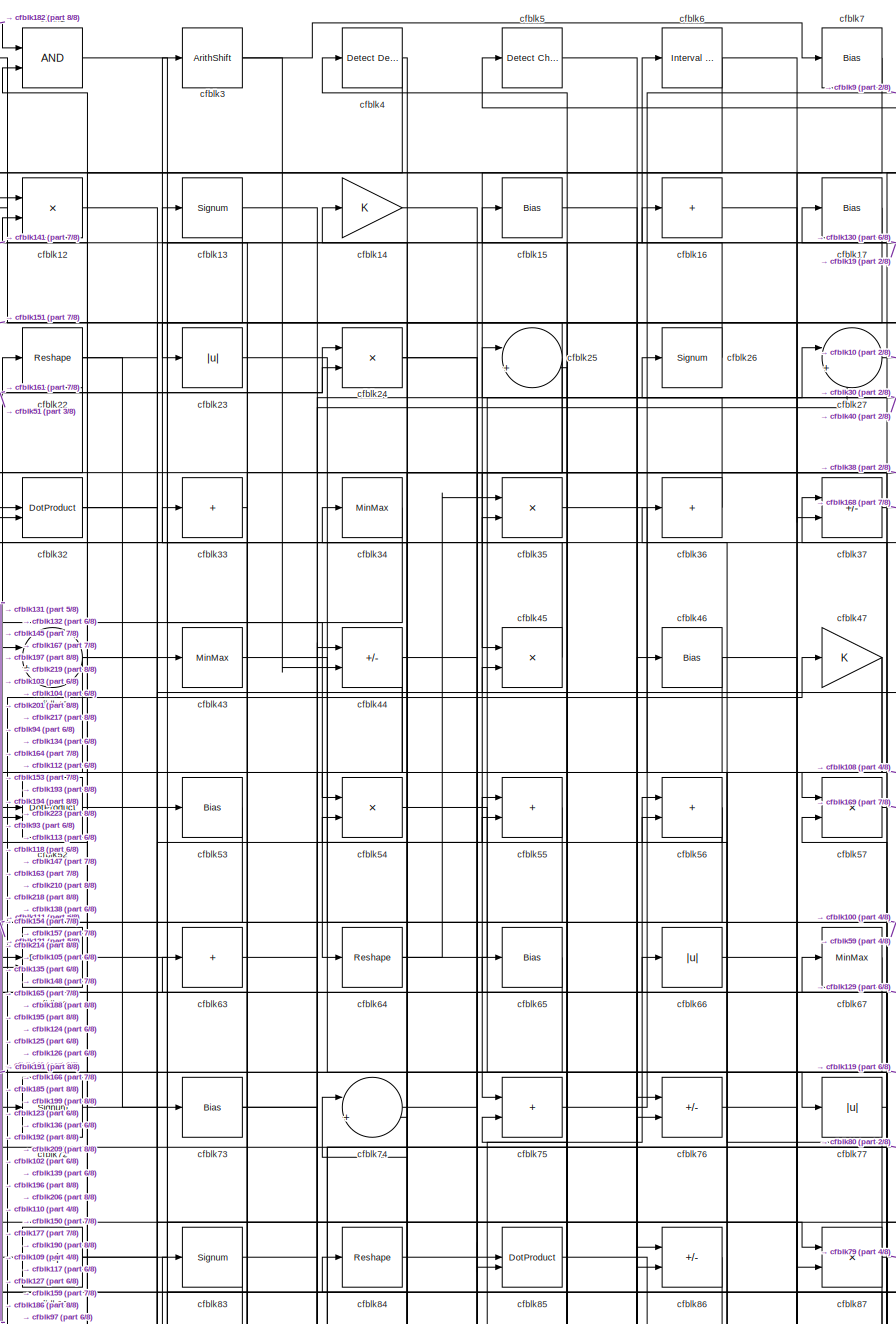
[diagram: root canvas - part 1/8, top center region]
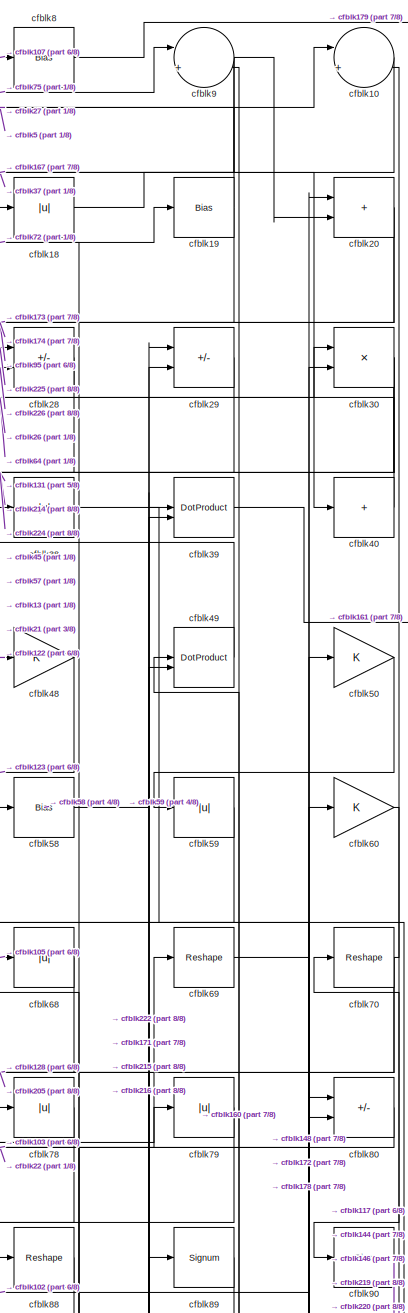
[diagram: root canvas - part 2/8, top right region]
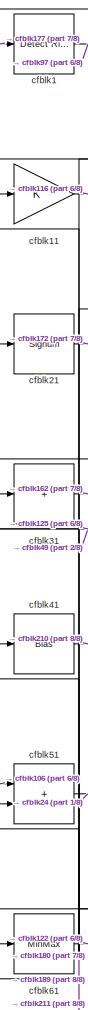
[diagram: root canvas - part 3/8, top left region]
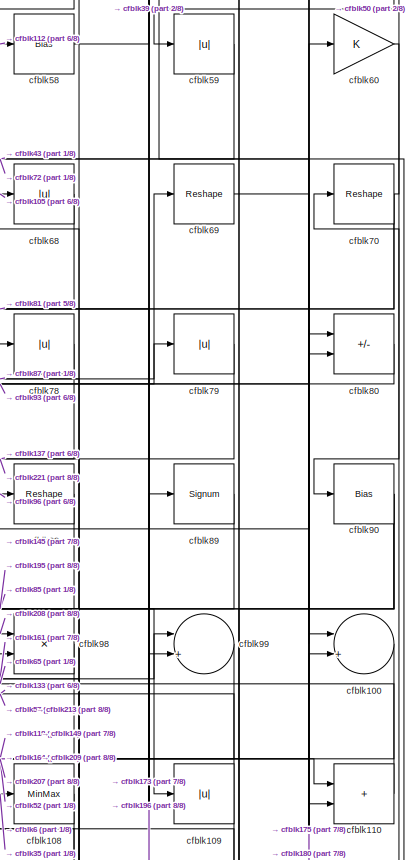
[diagram: root canvas - part 4/8, middle right region]
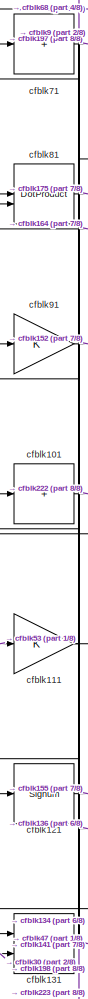
[diagram: root canvas - part 5/8, middle left region]
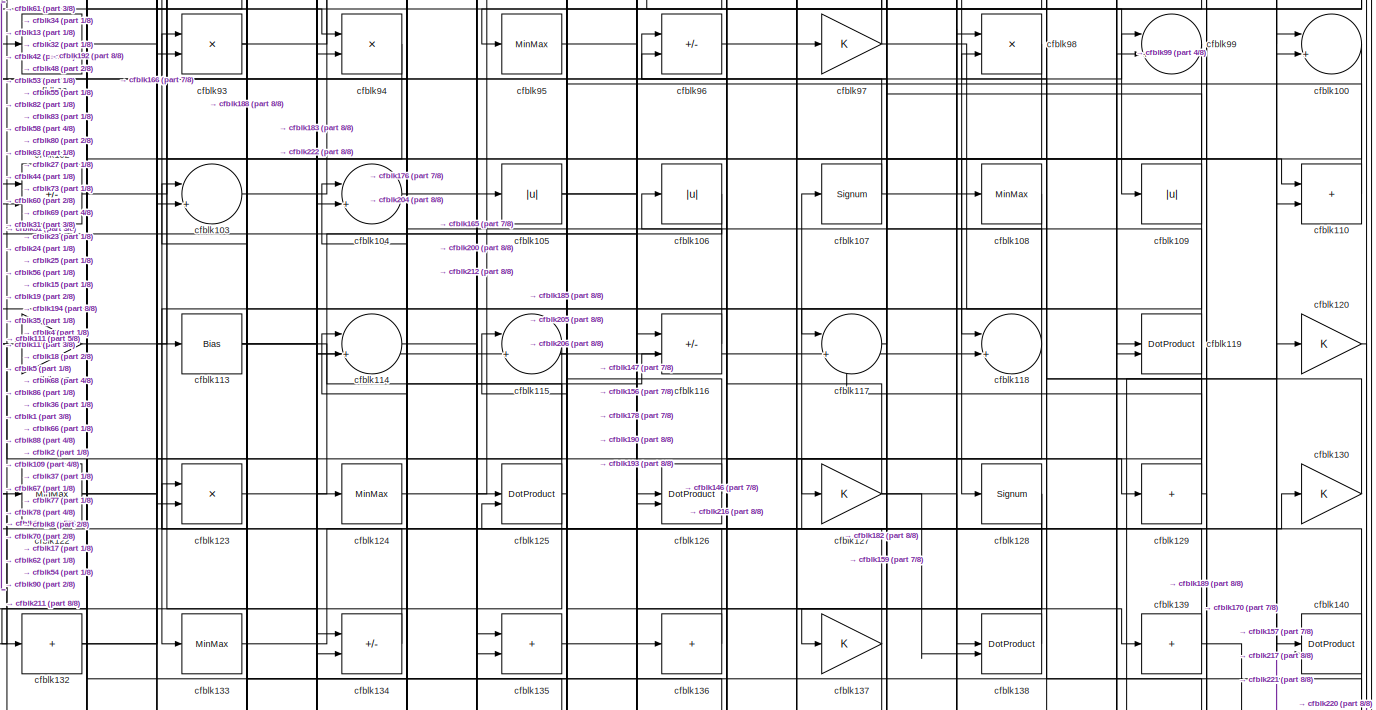
[diagram: root canvas - part 6/8, full width, middle band]
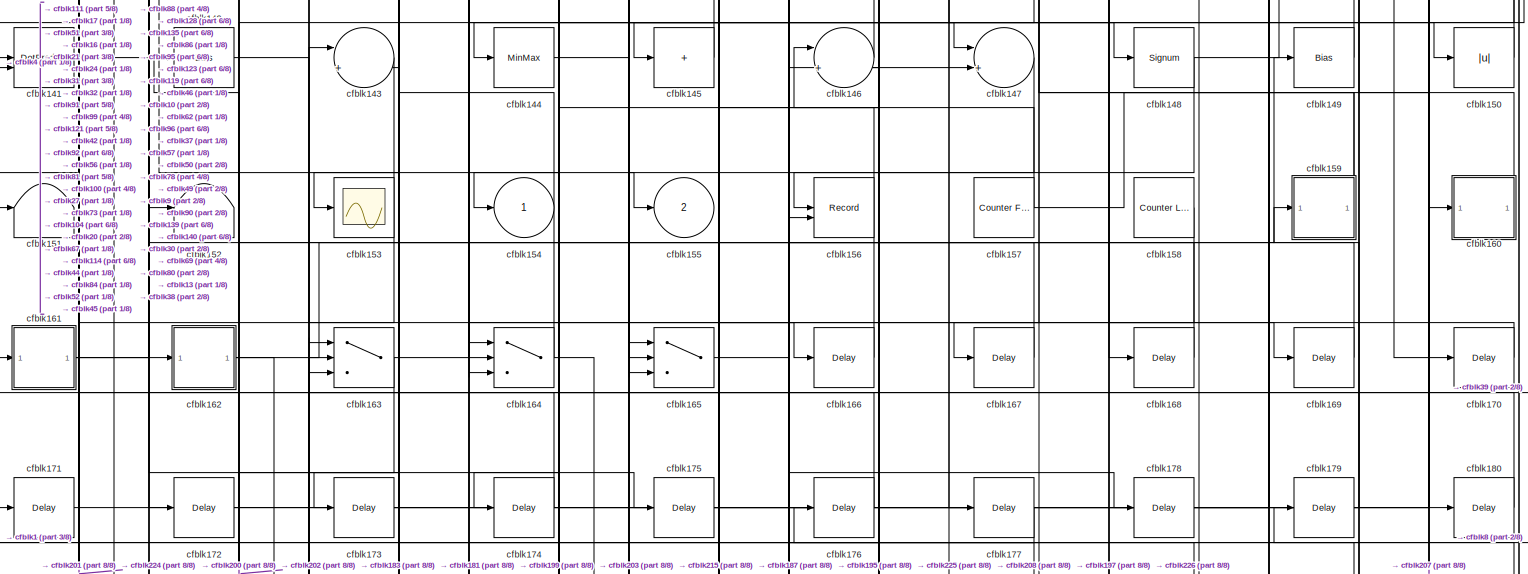
[diagram: root canvas - part 7/8, full width, bottom band]
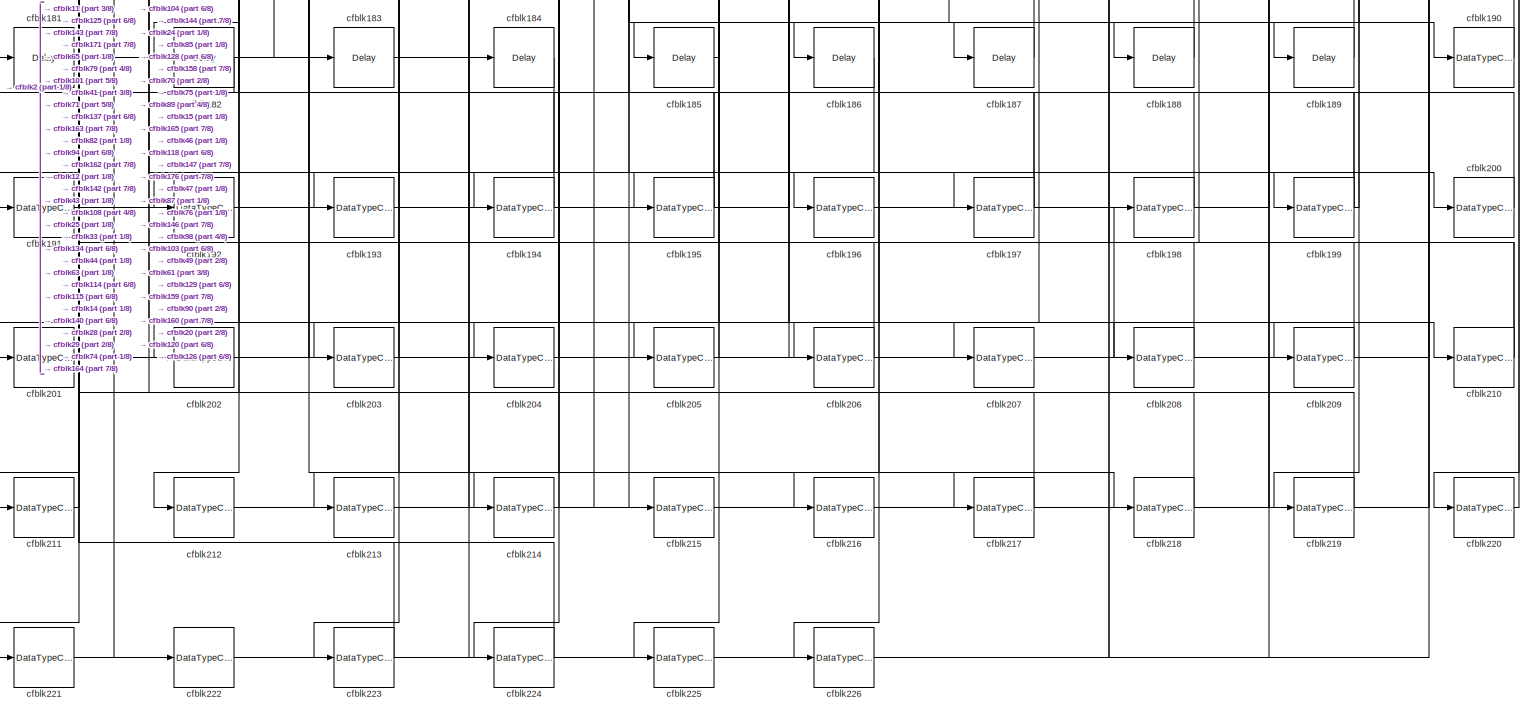
[diagram: root canvas - part 8/8, full width, bottom band]
MODEL slx_57c2b74b3828
KIND model
CONFIG AbsTol = auto
CONFIG EnableMultiTasking = off
CONFIG FixedStep = auto
CONFIG MaxStep = auto
CONFIG MinStep = auto
CONFIG RelTol = 1e-3
CONFIG SampleTimeConstraint = Unconstrained
CONFIG SolverName = VariableStepAuto
CONFIG StartTime = 0.0
CONFIG StopTime = 10.0
BLOCK [Reference] cfblk1  REF=hdlsllib/Logic and Bit
Operations/Detect Rise
Nonnegative
  SourceBlock = hdlsllib/Logic and Bit\nOperations/Detect Rise\nNonnegative
  SourceType = Detect Rise Nonnegative
BLOCK [Sum] cfblk10
  Inputs = |++
BLOCK [Sum] cfblk100
  Inputs = |++
BLOCK [Sum] cfblk101
  IconShape = rectangular
  Inputs = +
BLOCK [Sum] cfblk102
  IconShape = rectangular
  Inputs = +-
BLOCK [Sum] cfblk103
  Inputs = |++
BLOCK [Sum] cfblk104
  Inputs = |++
BLOCK [Abs] cfblk105
  SaturateOnIntegerOverflow = off
BLOCK [Abs] cfblk106
  SaturateOnIntegerOverflow = off
BLOCK [Signum] cfblk107
BLOCK [MinMax] cfblk108
BLOCK [Abs] cfblk109
  SaturateOnIntegerOverflow = off
BLOCK [Gain] cfblk11
BLOCK [Sum] cfblk110
  IconShape = rectangular
BLOCK [Gain] cfblk111
BLOCK [Gain] cfblk112
BLOCK [Bias] cfblk113
  Bias = 0.0
  SaturateOnIntegerOverflow = off
BLOCK [Sum] cfblk114
  Inputs = |++
BLOCK [Sum] cfblk115
  Inputs = |++
BLOCK [Sum] cfblk116
  IconShape = rectangular
  Inputs = +-
BLOCK [Sum] cfblk117
  Inputs = |++
BLOCK [Sum] cfblk118
  Inputs = |++
BLOCK [DotProduct] cfblk119
  OutDataTypeStr = Inherit: Inherit via internal rule
BLOCK [Product] cfblk12
  Inputs = */
  RndMeth = Zero
  SaturateOnIntegerOverflow = on
BLOCK [Gain] cfblk120
BLOCK [Signum] cfblk121
BLOCK [MinMax] cfblk122
BLOCK [Product] cfblk123
  Inputs = */
  RndMeth = Zero
  SaturateOnIntegerOverflow = on
BLOCK [MinMax] cfblk124
BLOCK [DotProduct] cfblk125
  OutDataTypeStr = Inherit: Inherit via internal rule
BLOCK [DotProduct] cfblk126
  OutDataTypeStr = Inherit: Inherit via internal rule
BLOCK [Gain] cfblk127
BLOCK [Signum] cfblk128
BLOCK [Sum] cfblk129
  IconShape = rectangular
  Inputs = +
BLOCK [Signum] cfblk13
BLOCK [Gain] cfblk130
BLOCK [Sum] cfblk131
  IconShape = rectangular
  Inputs = +-
BLOCK [Sum] cfblk132
  IconShape = rectangular
  Inputs = +
BLOCK [MinMax] cfblk133
BLOCK [Sum] cfblk134
  IconShape = rectangular
  Inputs = +-
BLOCK [Sum] cfblk135
  IconShape = rectangular
BLOCK [Sum] cfblk136
  IconShape = rectangular
  Inputs = +
BLOCK [Gain] cfblk137
BLOCK [DotProduct] cfblk138
  OutDataTypeStr = Inherit: Inherit via internal rule
BLOCK [Sum] cfblk139
  IconShape = rectangular
  Inputs = +
BLOCK [Gain] cfblk14
BLOCK [DotProduct] cfblk140
  OutDataTypeStr = Inherit: Inherit via internal rule
BLOCK [DotProduct] cfblk141
  OutDataTypeStr = Inherit: Inherit via internal rule
BLOCK [Bias] cfblk142
  Bias = 0.0
  SaturateOnIntegerOverflow = off
BLOCK [Sum] cfblk143
  Inputs = |++
BLOCK [MinMax] cfblk144
BLOCK [Sum] cfblk145
  IconShape = rectangular
  Inputs = +
BLOCK [Sum] cfblk146
  Inputs = |++
BLOCK [Sum] cfblk147
  Inputs = |++
BLOCK [Signum] cfblk148
BLOCK [Bias] cfblk149
  Bias = 0.0
  SaturateOnIntegerOverflow = off
BLOCK [Bias] cfblk15
  Bias = 0.0
  SaturateOnIntegerOverflow = off
BLOCK [Abs] cfblk150
  SaturateOnIntegerOverflow = off
BLOCK [Terminator] cfblk151
BLOCK [Terminator] cfblk152
BLOCK [Scope] cfblk153
  Floating = off
  NumInputPorts = 1
  ScopeSpecificationString = Simulink.scopes.TimeScopeBlockCfg('CurrentConfiguration', extmgr.ConfigurationSet(extmgr.Configuration('Core','General UI',true),extmgr.Configuration('Core','Source UI',true),extmgr.Configuration('Sources','WiredSimulink',true,'DataLoggingVariableName','ScopeData2','DataLoggingSaveFormat','Array','DataLoggingLimitDataPoints',true,'DataLoggingDecimation','1'),extmgr.Configuration('Visuals','Time Do...<+868ch>
BLOCK [Outport] cfblk154
  VectorParamsAs1DForOutWhenUnconnected = off
BLOCK [Outport] cfblk155
  Port = 2
  VectorParamsAs1DForOutWhenUnconnected = off
BLOCK [Record] cfblk156
  CompatibilityTag = XY
  FileSettingsInternal = {"entries":[{"content":{"excelSettings":{"content":{},"type":"Streamout.ExcelSettings"}},"type":"Streamout.FileSettingStorage","uuid":""}],"packageUris":["http:\/\/schema.mathworks.com\/mf0\/streamout_blocks\/R2020a"],"version":"1.0"}
  Layout = [1 1]
  SignalsInternal = {"entries":[{"content":{"signals":[{"content":{"blockPath":[],"dimensions":[1],"domain":"","lineColor":"#a2142f","plots":[1],"port":1,"signalID":2927,"signalName":"XY Graph:1"},"type":"RecordBlkView.Signal","uuid":""},{"content":{"blockPath":[],"dimensions":[1],"domain":"","lineColor":"#139fff","plots":[1],"port":2,"signalID":2930,"signalName":"XY Graph:2"},"type":"RecordBlkView.Signal","uuid":""}...<+146ch>
  VisualizationBindings = {"xyplotplugin":{"info":[{"series":[{"bindingParametersList":[{"parameter":"X-Axis","signalID":2927,"signalName":"XY Graph:1"},{"parameter":"Y-Axis","signalID":2930,"signalName":"XY Graph:2"}],"seriesID":20328}],"subplotID":1}]}}
  st = -1
BLOCK [Reference] cfblk157  REF=hdlsllib/Sources/Counter
Free-Running
  SourceBlock = hdlsllib/Sources/Counter\nFree-Running
  SourceType = Counter Free-Running
BLOCK [Reference] cfblk158  REF=hdlsllib/Sources/Counter
Limited
  SourceBlock = hdlsllib/Sources/Counter\nLimited
  SourceType = Counter Limited
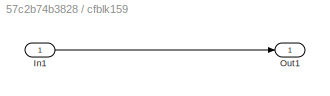
BLOCK [SubSystem] cfblk159
  LibrarySourceBlock = hdlsllib/Ports &\nSubsystems/Subsystem
BLOCK [Inport] cfblk159/In1
BLOCK [Outport] cfblk159/Out1
BLOCK [Sum] cfblk16
  IconShape = rectangular
  Inputs = +
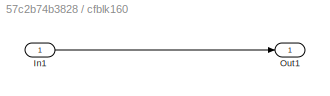
BLOCK [SubSystem] cfblk160
  LibrarySourceBlock = hdlsllib/Ports &\nSubsystems/Subsystem
BLOCK [Inport] cfblk160/In1
BLOCK [Outport] cfblk160/Out1
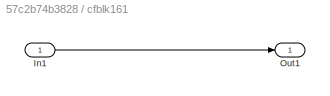
BLOCK [SubSystem] cfblk161
  LibrarySourceBlock = hdlsllib/Ports &\nSubsystems/Subsystem
BLOCK [Inport] cfblk161/In1
BLOCK [Outport] cfblk161/Out1
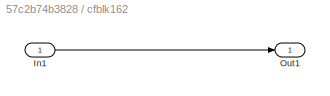
BLOCK [SubSystem] cfblk162
  LibrarySourceBlock = hdlsllib/Ports &\nSubsystems/Subsystem
BLOCK [Inport] cfblk162/In1
BLOCK [Outport] cfblk162/Out1
BLOCK [Switch] cfblk163
  InputSameDT = off
  SaturateOnIntegerOverflow = off
BLOCK [Switch] cfblk164
  InputSameDT = off
  SaturateOnIntegerOverflow = off
BLOCK [Switch] cfblk165
  InputSameDT = off
  SaturateOnIntegerOverflow = off
BLOCK [Delay] cfblk166
  InputPortMap = u0
  SampleTime = 1
BLOCK [Delay] cfblk167
  InputPortMap = u0
  SampleTime = 1
BLOCK [Delay] cfblk168
  InputPortMap = u0
  SampleTime = 1
BLOCK [Delay] cfblk169
  InputPortMap = u0
  SampleTime = 1
BLOCK [Bias] cfblk17
  Bias = 0.0
  SaturateOnIntegerOverflow = off
BLOCK [Delay] cfblk170
  InputPortMap = u0
  SampleTime = 1
BLOCK [Delay] cfblk171
  InputPortMap = u0
  SampleTime = 1
BLOCK [Delay] cfblk172
  InputPortMap = u0
  SampleTime = 1
BLOCK [Delay] cfblk173
  InputPortMap = u0
  SampleTime = 1
BLOCK [Delay] cfblk174
  InputPortMap = u0
  SampleTime = 1
BLOCK [Delay] cfblk175
  InputPortMap = u0
  SampleTime = 1
BLOCK [Delay] cfblk176
  InputPortMap = u0
  SampleTime = 1
BLOCK [Delay] cfblk177
  InputPortMap = u0
  SampleTime = 1
BLOCK [Delay] cfblk178
  InputPortMap = u0
  SampleTime = 1
BLOCK [Delay] cfblk179
  InputPortMap = u0
  SampleTime = 1
BLOCK [Abs] cfblk18
  SaturateOnIntegerOverflow = off
BLOCK [Delay] cfblk180
  InputPortMap = u0
  SampleTime = 1
BLOCK [Delay] cfblk181
  InputPortMap = u0
  SampleTime = 1
BLOCK [Delay] cfblk182
  InputPortMap = u0
  SampleTime = 1
BLOCK [Delay] cfblk183
  InputPortMap = u0
  SampleTime = 1
BLOCK [Delay] cfblk184
  InputPortMap = u0
  SampleTime = 1
BLOCK [Delay] cfblk185
  InputPortMap = u0
  SampleTime = 1
BLOCK [Delay] cfblk186
  InputPortMap = u0
  SampleTime = 1
BLOCK [Delay] cfblk187
  InputPortMap = u0
  SampleTime = 1
BLOCK [Delay] cfblk188
  InputPortMap = u0
  SampleTime = 1
BLOCK [Delay] cfblk189
  InputPortMap = u0
  SampleTime = 1
BLOCK [Bias] cfblk19
  Bias = 0.0
  SaturateOnIntegerOverflow = off
BLOCK [DataTypeConversion] cfblk190
  OutDataTypeStr = uint8
  RndMeth = Floor
  SaturateOnIntegerOverflow = off
BLOCK [DataTypeConversion] cfblk191
  OutDataTypeStr = uint8
  RndMeth = Floor
  SaturateOnIntegerOverflow = off
BLOCK [DataTypeConversion] cfblk192
  OutDataTypeStr = uint8
  RndMeth = Floor
  SaturateOnIntegerOverflow = off
BLOCK [DataTypeConversion] cfblk193
  OutDataTypeStr = uint8
  RndMeth = Floor
  SaturateOnIntegerOverflow = off
BLOCK [DataTypeConversion] cfblk194
  OutDataTypeStr = uint8
  RndMeth = Floor
  SaturateOnIntegerOverflow = off
BLOCK [DataTypeConversion] cfblk195
  RndMeth = Floor
  SaturateOnIntegerOverflow = off
BLOCK [DataTypeConversion] cfblk196
  OutDataTypeStr = uint8
  RndMeth = Floor
  SaturateOnIntegerOverflow = off
BLOCK [DataTypeConversion] cfblk197
  RndMeth = Floor
  SaturateOnIntegerOverflow = off
BLOCK [DataTypeConversion] cfblk198
  OutDataTypeStr = uint8
  RndMeth = Floor
  SaturateOnIntegerOverflow = off
BLOCK [DataTypeConversion] cfblk199
  RndMeth = Floor
  SaturateOnIntegerOverflow = off
BLOCK [Logic] cfblk2
  AllPortsSameDT = off
  OutDataTypeStr = boolean
BLOCK [Sum] cfblk20
  IconShape = rectangular
BLOCK [DataTypeConversion] cfblk200
  OutDataTypeStr = uint8
  RndMeth = Floor
  SaturateOnIntegerOverflow = off
BLOCK [DataTypeConversion] cfblk201
  RndMeth = Floor
  SaturateOnIntegerOverflow = off
BLOCK [DataTypeConversion] cfblk202
  OutDataTypeStr = uint8
  RndMeth = Floor
  SaturateOnIntegerOverflow = off
BLOCK [DataTypeConversion] cfblk203
  OutDataTypeStr = uint8
  RndMeth = Floor
  SaturateOnIntegerOverflow = off
BLOCK [DataTypeConversion] cfblk204
  OutDataTypeStr = uint8
  RndMeth = Floor
  SaturateOnIntegerOverflow = off
BLOCK [DataTypeConversion] cfblk205
  OutDataTypeStr = uint8
  RndMeth = Floor
  SaturateOnIntegerOverflow = off
BLOCK [DataTypeConversion] cfblk206
  OutDataTypeStr = uint8
  RndMeth = Floor
  SaturateOnIntegerOverflow = off
BLOCK [DataTypeConversion] cfblk207
  OutDataTypeStr = uint8
  RndMeth = Floor
  SaturateOnIntegerOverflow = off
BLOCK [DataTypeConversion] cfblk208
  OutDataTypeStr = uint8
  RndMeth = Floor
  SaturateOnIntegerOverflow = off
BLOCK [DataTypeConversion] cfblk209
  OutDataTypeStr = uint8
  RndMeth = Floor
  SaturateOnIntegerOverflow = off
BLOCK [Signum] cfblk21
BLOCK [DataTypeConversion] cfblk210
  RndMeth = Floor
  SaturateOnIntegerOverflow = off
BLOCK [DataTypeConversion] cfblk211
  OutDataTypeStr = uint8
  RndMeth = Floor
  SaturateOnIntegerOverflow = off
BLOCK [DataTypeConversion] cfblk212
  OutDataTypeStr = uint8
  RndMeth = Floor
  SaturateOnIntegerOverflow = off
BLOCK [DataTypeConversion] cfblk213
  OutDataTypeStr = uint8
  RndMeth = Floor
  SaturateOnIntegerOverflow = off
BLOCK [DataTypeConversion] cfblk214
  RndMeth = Floor
  SaturateOnIntegerOverflow = off
BLOCK [DataTypeConversion] cfblk215
  OutDataTypeStr = uint8
  RndMeth = Floor
  SaturateOnIntegerOverflow = off
BLOCK [DataTypeConversion] cfblk216
  OutDataTypeStr = uint8
  RndMeth = Floor
  SaturateOnIntegerOverflow = off
BLOCK [DataTypeConversion] cfblk217
  RndMeth = Floor
  SaturateOnIntegerOverflow = off
BLOCK [DataTypeConversion] cfblk218
  OutDataTypeStr = uint8
  RndMeth = Floor
  SaturateOnIntegerOverflow = off
BLOCK [DataTypeConversion] cfblk219
  OutDataTypeStr = uint8
  RndMeth = Floor
  SaturateOnIntegerOverflow = off
BLOCK [Reshape] cfblk22
BLOCK [DataTypeConversion] cfblk220
  OutDataTypeStr = uint8
  RndMeth = Floor
  SaturateOnIntegerOverflow = off
BLOCK [DataTypeConversion] cfblk221
  OutDataTypeStr = uint8
  RndMeth = Floor
  SaturateOnIntegerOverflow = off
BLOCK [DataTypeConversion] cfblk222
  RndMeth = Floor
  SaturateOnIntegerOverflow = off
BLOCK [DataTypeConversion] cfblk223
  OutDataTypeStr = uint8
  RndMeth = Floor
  SaturateOnIntegerOverflow = off
BLOCK [DataTypeConversion] cfblk224
  OutDataTypeStr = uint8
  RndMeth = Floor
  SaturateOnIntegerOverflow = off
BLOCK [DataTypeConversion] cfblk225
  OutDataTypeStr = uint8
  RndMeth = Floor
  SaturateOnIntegerOverflow = off
BLOCK [DataTypeConversion] cfblk226
  OutDataTypeStr = uint8
  RndMeth = Floor
  SaturateOnIntegerOverflow = off
BLOCK [Abs] cfblk23
  SaturateOnIntegerOverflow = off
BLOCK [Product] cfblk24
  Inputs = */
  RndMeth = Zero
  SaturateOnIntegerOverflow = on
BLOCK [Sum] cfblk25
  Inputs = |++
BLOCK [Signum] cfblk26
BLOCK [Sum] cfblk27
  Inputs = |++
BLOCK [Sum] cfblk28
  IconShape = rectangular
  Inputs = +-
BLOCK [Sum] cfblk29
  IconShape = rectangular
  Inputs = +-
BLOCK [ArithShift] cfblk3
  BitShiftNumber = 8
  InputPortMap = u0
BLOCK [Product] cfblk30
  Inputs = */
  RndMeth = Zero
  SaturateOnIntegerOverflow = on
BLOCK [Sum] cfblk31
  IconShape = rectangular
  Inputs = +
BLOCK [DotProduct] cfblk32
  OutDataTypeStr = Inherit: Inherit via internal rule
BLOCK [Sum] cfblk33
  IconShape = rectangular
  Inputs = +
BLOCK [MinMax] cfblk34
BLOCK [Product] cfblk35
  Inputs = */
  RndMeth = Zero
  SaturateOnIntegerOverflow = on
BLOCK [Sum] cfblk36
  IconShape = rectangular
  Inputs = +
BLOCK [Sum] cfblk37
  IconShape = rectangular
  Inputs = +-
BLOCK [Abs] cfblk38
  SaturateOnIntegerOverflow = off
BLOCK [DotProduct] cfblk39
  OutDataTypeStr = Inherit: Inherit via internal rule
BLOCK [Reference] cfblk4  REF=simulink/Logic and Bit
Operations/Detect
Decrease
  LibrarySourceBlock = hdlsllib/Logic and Bit\nOperations/Detect\nDecrease
  SourceBlock = simulink/Logic and Bit\nOperations/Detect\nDecrease
  SourceType = Detect Decrease
BLOCK [Sum] cfblk40
  IconShape = rectangular
  Inputs = +
BLOCK [Bias] cfblk41
  Bias = 0.0
  SaturateOnIntegerOverflow = off
BLOCK [Sum] cfblk42
  Inputs = |++
BLOCK [MinMax] cfblk43
BLOCK [Sum] cfblk44
  IconShape = rectangular
  Inputs = +-
BLOCK [Product] cfblk45
  Inputs = */
  RndMeth = Zero
  SaturateOnIntegerOverflow = on
BLOCK [Bias] cfblk46
  Bias = 0.0
  SaturateOnIntegerOverflow = off
BLOCK [Gain] cfblk47
BLOCK [Gain] cfblk48
BLOCK [DotProduct] cfblk49
  OutDataTypeStr = Inherit: Inherit via internal rule
BLOCK [Reference] cfblk5  REF=simulink/Logic and Bit
Operations/Detect
Change
  LibrarySourceBlock = hdlsllib/Logic and Bit\nOperations/Detect\nChange
  SourceBlock = simulink/Logic and Bit\nOperations/Detect\nChange
  SourceType = Detect Change
BLOCK [Gain] cfblk50
BLOCK [Sum] cfblk51
  IconShape = rectangular
BLOCK [DotProduct] cfblk52
  OutDataTypeStr = Inherit: Inherit via internal rule
BLOCK [Bias] cfblk53
  Bias = 0.0
  SaturateOnIntegerOverflow = off
BLOCK [Product] cfblk54
  Inputs = */
  RndMeth = Zero
  SaturateOnIntegerOverflow = on
BLOCK [Sum] cfblk55
  IconShape = rectangular
BLOCK [Sum] cfblk56
  IconShape = rectangular
BLOCK [Product] cfblk57
  Inputs = */
  RndMeth = Zero
  SaturateOnIntegerOverflow = on
BLOCK [Bias] cfblk58
  Bias = 0.0
  SaturateOnIntegerOverflow = off
BLOCK [Abs] cfblk59
  SaturateOnIntegerOverflow = off
BLOCK [Reference] cfblk6  REF=hdlsllib/Logic and Bit
Operations/Interval Test
  SourceBlock = hdlsllib/Logic and Bit\nOperations/Interval Test
  SourceType = Interval Test
BLOCK [Gain] cfblk60
BLOCK [MinMax] cfblk61
BLOCK [DotProduct] cfblk62
  OutDataTypeStr = Inherit: Inherit via internal rule
BLOCK [Sum] cfblk63
  IconShape = rectangular
  Inputs = +
BLOCK [Reshape] cfblk64
BLOCK [Bias] cfblk65
  Bias = 0.0
  SaturateOnIntegerOverflow = off
BLOCK [Abs] cfblk66
  SaturateOnIntegerOverflow = off
BLOCK [MinMax] cfblk67
BLOCK [Abs] cfblk68
  SaturateOnIntegerOverflow = off
BLOCK [Reshape] cfblk69
BLOCK [Bias] cfblk7
  Bias = 0.0
  SaturateOnIntegerOverflow = off
BLOCK [Reshape] cfblk70
BLOCK [Sum] cfblk71
  IconShape = rectangular
  Inputs = +
BLOCK [Signum] cfblk72
BLOCK [Bias] cfblk73
  Bias = 0.0
  SaturateOnIntegerOverflow = off
BLOCK [Sum] cfblk74
  Inputs = |++
BLOCK [Sum] cfblk75
  IconShape = rectangular
BLOCK [Sum] cfblk76
  IconShape = rectangular
  Inputs = +-
BLOCK [Abs] cfblk77
  SaturateOnIntegerOverflow = off
BLOCK [Abs] cfblk78
  SaturateOnIntegerOverflow = off
BLOCK [Abs] cfblk79
  SaturateOnIntegerOverflow = off
BLOCK [Bias] cfblk8
  Bias = 0.0
  SaturateOnIntegerOverflow = off
BLOCK [Sum] cfblk80
  IconShape = rectangular
  Inputs = +-
BLOCK [DotProduct] cfblk81
  OutDataTypeStr = Inherit: Inherit via internal rule
BLOCK [Abs] cfblk82
  SaturateOnIntegerOverflow = off
BLOCK [Signum] cfblk83
BLOCK [Reshape] cfblk84
BLOCK [DotProduct] cfblk85
  OutDataTypeStr = Inherit: Inherit via internal rule
BLOCK [Sum] cfblk86
  IconShape = rectangular
  Inputs = +-
BLOCK [Product] cfblk87
  Inputs = */
  RndMeth = Zero
  SaturateOnIntegerOverflow = on
BLOCK [Reshape] cfblk88
BLOCK [Signum] cfblk89
BLOCK [Sum] cfblk9
  Inputs = |++
BLOCK [Bias] cfblk90
  Bias = 0.0
  SaturateOnIntegerOverflow = off
BLOCK [Gain] cfblk91
BLOCK [Bias] cfblk92
  Bias = 0.0
  SaturateOnIntegerOverflow = off
BLOCK [Product] cfblk93
  Inputs = */
  RndMeth = Zero
  SaturateOnIntegerOverflow = on
BLOCK [Product] cfblk94
  Inputs = */
  RndMeth = Zero
  SaturateOnIntegerOverflow = on
BLOCK [MinMax] cfblk95
BLOCK [Sum] cfblk96
  IconShape = rectangular
  Inputs = +-
BLOCK [Gain] cfblk97
BLOCK [Product] cfblk98
  Inputs = */
  RndMeth = Zero
  SaturateOnIntegerOverflow = on
BLOCK [Sum] cfblk99
  Inputs = |++
LINE cfblk100:1 -> cfblk164:3
LINE cfblk101:1 -> cfblk222:1
LINE cfblk102:1 -> cfblk80:2
LINE cfblk103:1 -> cfblk60:1
LINE cfblk104:1 -> cfblk200:1
NET cfblk105:1 -> cfblk18:1, cfblk68:1
LINE cfblk106:1 -> cfblk51:1
NET cfblk107:1 -> cfblk8:1, cfblk93:1
LINE cfblk108:1 -> cfblk213:1
NET cfblk109:1 -> cfblk133:1, cfblk57:2
LINE cfblk10:1 -> cfblk167:1
LINE cfblk110:1 -> cfblk65:1
NET cfblk111:1 -> cfblk134:1, cfblk141:1
LINE cfblk112:1 -> cfblk58:1
NET cfblk113:1 -> cfblk116:2, cfblk27:1, cfblk55:1
LINE cfblk114:1 -> cfblk165:2
LINE cfblk115:1 -> cfblk204:1
LINE cfblk116:1 -> cfblk92:1
LINE cfblk117:1 -> cfblk37:1
NET cfblk118:1 -> cfblk106:1, cfblk216:1
NET cfblk119:1 -> cfblk156:1, cfblk67:1
LINE cfblk11:1 -> cfblk116:1
LINE cfblk120:1 -> cfblk220:1
LINE cfblk121:1 -> cfblk155:1
NET cfblk122:1 -> cfblk129:1, cfblk48:1
LINE cfblk123:1 -> cfblk86:2
LINE cfblk124:1 -> cfblk56:1
NET cfblk125:1 -> cfblk211:1, cfblk31:1, cfblk35:2
LINE cfblk126:1 -> cfblk4:1
NET cfblk127:1 -> cfblk138:1, cfblk138:2, cfblk96:2
NET cfblk128:1 -> cfblk125:2, cfblk156:2, cfblk185:1
NET cfblk129:1 -> cfblk117:2, cfblk189:1, cfblk62:1
LINE cfblk12:1 -> cfblk217:1
LINE cfblk130:1 -> cfblk17:1
LINE cfblk131:1 -> cfblk47:1
NET cfblk132:1 -> cfblk53:1, cfblk55:2
LINE cfblk133:1 -> cfblk130:1
LINE cfblk134:1 -> cfblk83:1
LINE cfblk135:1 -> cfblk147:2
LINE cfblk136:1 -> cfblk91:1
NET cfblk137:1 -> cfblk107:1, cfblk182:1
LINE cfblk138:1 -> cfblk34:1
NET cfblk139:1 -> cfblk170:1, cfblk36:1
NET cfblk13:1 -> cfblk38:1, cfblk93:2
NET cfblk140:1 -> cfblk15:1, cfblk194:1
LINE cfblk141:1 -> cfblk16:1
LINE cfblk142:1 -> cfblk199:1
LINE cfblk143:1 -> cfblk201:1
LINE cfblk144:1 -> cfblk187:1
LINE cfblk145:1 -> cfblk52:1
LINE cfblk146:1 -> cfblk123:1
LINE cfblk147:1 -> cfblk226:1
NET cfblk148:1 -> cfblk165:3, cfblk50:1
LINE cfblk149:1 -> cfblk78:1
LINE cfblk14:1 -> cfblk77:1
LINE cfblk150:1 -> cfblk13:1
NET cfblk157:1 -> cfblk140:2, cfblk84:1
LINE cfblk158:1 -> cfblk225:1
LINE cfblk159/In1:1 -> cfblk159/Out1:1
NET cfblk159:1 -> cfblk62:2, cfblk96:1
LINE cfblk15:1 -> cfblk209:1
LINE cfblk160/In1:1 -> cfblk160/Out1:1
LINE cfblk160:1 -> cfblk49:1
LINE cfblk161/In1:1 -> cfblk161/Out1:1
NET cfblk161:1 -> cfblk24:2, cfblk99:1
LINE cfblk162/In1:1 -> cfblk162/Out1:1
NET cfblk162:1 -> cfblk149:1, cfblk183:1
NET cfblk163:1 -> cfblk202:1, cfblk27:2
NET cfblk164:1 -> cfblk215:1, cfblk81:2
LINE cfblk165:1 -> cfblk208:1
LINE cfblk166:1 -> cfblk45:2
LINE cfblk167:1 -> cfblk42:2
LINE cfblk168:1 -> cfblk86:1
LINE cfblk169:1 -> cfblk32:1
LINE cfblk16:1 -> cfblk177:1
LINE cfblk170:1 -> cfblk164:2
LINE cfblk171:1 -> cfblk39:2
LINE cfblk172:1 -> cfblk30:2
LINE cfblk173:1 -> cfblk99:2
LINE cfblk174:1 -> cfblk163:2
LINE cfblk175:1 -> cfblk100:2
LINE cfblk176:1 -> cfblk104:1
LINE cfblk177:1 -> cfblk1:1
LINE cfblk178:1 -> cfblk80:1
LINE cfblk179:1 -> cfblk9:2
LINE cfblk17:1 -> cfblk151:1
LINE cfblk180:1 -> cfblk51:2
LINE cfblk181:1 -> cfblk163:3
LINE cfblk182:1 -> cfblk2:1
LINE cfblk183:1 -> cfblk134:2
LINE cfblk184:1 -> cfblk212:1
LINE cfblk185:1 -> cfblk75:2
LINE cfblk186:1 -> cfblk203:1
LINE cfblk187:1 -> cfblk146:1
LINE cfblk188:1 -> cfblk103:1
LINE cfblk189:1 -> cfblk61:1
LINE cfblk18:1 -> cfblk40:1
LINE cfblk190:1 -> cfblk126:1
LINE cfblk191:1 -> cfblk76:1
LINE cfblk192:1 -> cfblk76:2
LINE cfblk193:1 -> cfblk126:2
LINE cfblk194:1 -> cfblk33:1
NET cfblk195:1 -> cfblk163:1, cfblk85:1
LINE cfblk196:1 -> cfblk89:1
NET cfblk197:1 -> cfblk176:1, cfblk82:1
LINE cfblk198:1 -> cfblk71:1
NET cfblk199:1 -> cfblk14:1, cfblk159:1, cfblk25:2
NET cfblk19:1 -> cfblk5:1, cfblk95:1
LINE cfblk1:1 -> cfblk97:1
LINE cfblk200:1 -> cfblk142:1
NET cfblk201:1 -> cfblk198:1, cfblk43:1, cfblk46:1
LINE cfblk202:1 -> cfblk143:1
LINE cfblk203:1 -> cfblk143:2
LINE cfblk204:1 -> cfblk114:1
LINE cfblk205:1 -> cfblk115:1
LINE cfblk206:1 -> cfblk115:2
LINE cfblk207:1 -> cfblk160:1
LINE cfblk208:1 -> cfblk98:1
LINE cfblk209:1 -> cfblk98:2
NET cfblk20:1 -> cfblk173:1, cfblk174:1
NET cfblk210:1 -> cfblk11:1, cfblk44:1
LINE cfblk211:1 -> cfblk41:1
LINE cfblk212:1 -> cfblk125:1
LINE cfblk213:1 -> cfblk184:1
NET cfblk214:1 -> cfblk20:1, cfblk74:1
LINE cfblk215:1 -> cfblk29:1
LINE cfblk216:1 -> cfblk29:2
NET cfblk217:1 -> cfblk140:1, cfblk181:1
LINE cfblk218:1 -> cfblk12:1
LINE cfblk219:1 -> cfblk12:2
LINE cfblk21:1 -> cfblk172:1
LINE cfblk220:1 -> cfblk70:1
LINE cfblk221:1 -> cfblk120:1
NET cfblk222:1 -> cfblk114:2, cfblk49:2
LINE cfblk223:1 -> cfblk101:1
LINE cfblk224:1 -> cfblk171:1
LINE cfblk225:1 -> cfblk28:1
LINE cfblk226:1 -> cfblk28:2
NET cfblk22:1 -> cfblk32:2, cfblk73:1, cfblk87:2
LINE cfblk23:1 -> cfblk135:1
NET cfblk24:1 -> cfblk105:1, cfblk188:1
NET cfblk25:1 -> cfblk135:2, cfblk223:1, cfblk23:1
LINE cfblk26:1 -> cfblk6:1
LINE cfblk27:1 -> cfblk10:1
LINE cfblk28:1 -> cfblk224:1
LINE cfblk29:1 -> cfblk214:1
LINE cfblk2:1 -> cfblk64:1
NET cfblk30:1 -> cfblk131:2, cfblk45:1, cfblk57:1
LINE cfblk31:1 -> cfblk162:1
NET cfblk32:1 -> cfblk104:2, cfblk113:1
LINE cfblk33:1 -> cfblk193:1
LINE cfblk34:1 -> cfblk132:1
LINE cfblk35:1 -> cfblk108:1
LINE cfblk36:1 -> cfblk25:1
LINE cfblk37:1 -> cfblk168:1
LINE cfblk38:1 -> cfblk144:1
LINE cfblk39:1 -> cfblk161:1
NET cfblk3:1 -> cfblk44:2, cfblk7:1
LINE cfblk40:1 -> cfblk26:1
LINE cfblk41:1 -> cfblk210:1
NET cfblk42:1 -> cfblk102:2, cfblk103:2, cfblk54:1
LINE cfblk43:1 -> cfblk100:1
NET cfblk44:1 -> cfblk148:1, cfblk52:2, cfblk94:2
LINE cfblk45:1 -> cfblk3:1
NET cfblk46:1 -> cfblk150:1, cfblk85:2
NET cfblk47:1 -> cfblk196:1, cfblk206:1
LINE cfblk48:1 -> cfblk123:2
LINE cfblk49:1 -> cfblk21:1
NET cfblk4:1 -> cfblk141:2, cfblk74:2
LINE cfblk50:1 -> cfblk59:1
LINE cfblk51:1 -> cfblk24:1
LINE cfblk52:1 -> cfblk110:1
LINE cfblk53:1 -> cfblk111:1
LINE cfblk54:1 -> cfblk119:1
LINE cfblk55:1 -> cfblk121:1
NET cfblk56:1 -> cfblk153:1, cfblk54:2
LINE cfblk57:1 -> cfblk169:1
LINE cfblk58:1 -> cfblk39:1
LINE cfblk59:1 -> cfblk72:1
LINE cfblk5:1 -> cfblk136:1
LINE cfblk60:1 -> cfblk90:1
LINE cfblk61:1 -> cfblk122:1
LINE cfblk62:1 -> cfblk164:1
LINE cfblk63:1 -> cfblk218:1
NET cfblk64:1 -> cfblk30:1, cfblk35:1
LINE cfblk65:1 -> cfblk191:1
LINE cfblk66:1 -> cfblk139:1
LINE cfblk67:1 -> cfblk154:1
LINE cfblk68:1 -> cfblk81:1
LINE cfblk69:1 -> cfblk180:1
NET cfblk6:1 -> cfblk110:2, cfblk75:1
NET cfblk70:1 -> cfblk10:2, cfblk128:1, cfblk205:1
LINE cfblk71:1 -> cfblk197:1
LINE cfblk72:1 -> cfblk19:1
NET cfblk73:1 -> cfblk118:2, cfblk147:1
LINE cfblk74:1 -> cfblk66:1
LINE cfblk75:1 -> cfblk9:1
LINE cfblk76:1 -> cfblk190:1
LINE cfblk77:1 -> cfblk127:1
LINE cfblk78:1 -> cfblk137:1
LINE cfblk79:1 -> cfblk221:1
LINE cfblk7:1 -> cfblk42:1
LINE cfblk80:1 -> cfblk22:1
LINE cfblk81:1 -> cfblk175:1
NET cfblk82:1 -> cfblk87:1, cfblk94:1
NET cfblk83:1 -> cfblk112:1, cfblk124:1
LINE cfblk84:1 -> cfblk165:1
LINE cfblk85:1 -> cfblk109:1
LINE cfblk86:1 -> cfblk102:1
NET cfblk87:1 -> cfblk186:1, cfblk56:2, cfblk79:1
LINE cfblk88:1 -> cfblk145:1
LINE cfblk89:1 -> cfblk195:1
LINE cfblk8:1 -> cfblk179:1
NET cfblk90:1 -> cfblk117:1, cfblk146:2, cfblk219:1
LINE cfblk91:1 -> cfblk152:1
LINE cfblk92:1 -> cfblk166:1
NET cfblk93:1 -> cfblk63:1, cfblk69:1
LINE cfblk94:1 -> cfblk192:1
LINE cfblk95:1 -> cfblk178:1
LINE cfblk96:1 -> cfblk88:1
NET cfblk97:1 -> cfblk119:2, cfblk2:2
LINE cfblk98:1 -> cfblk207:1
LINE cfblk99:1 -> cfblk118:1
NET cfblk9:1 -> cfblk131:1, cfblk20:2, cfblk37:2
note: NET lines group one-source signal fan-out (src -> all destinations, sorted); 1:1 wires keep LINE
